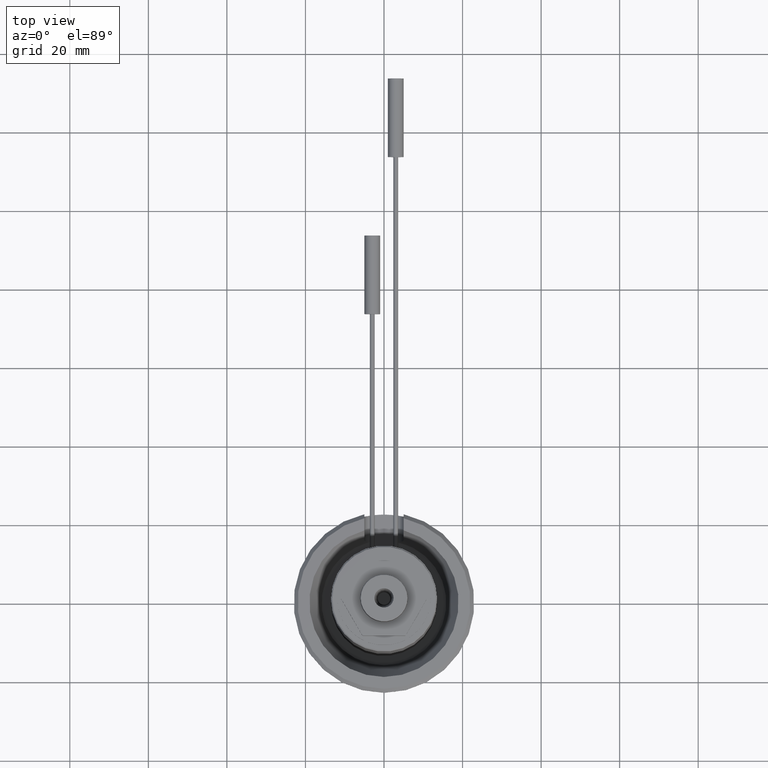
[diagram: clean part render]
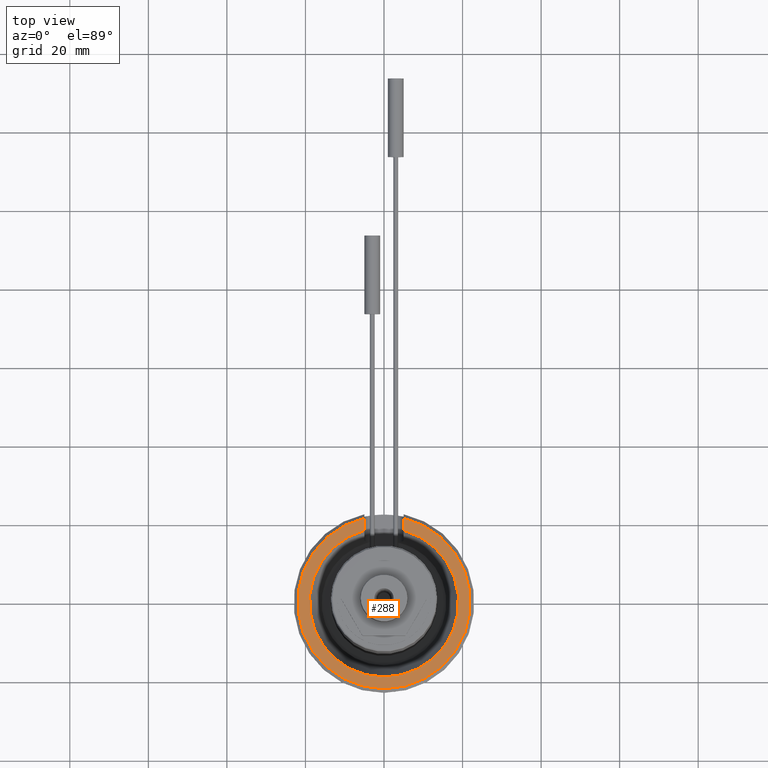
[diagram: same view with one face highlighted and labeled with its STEP entity id]
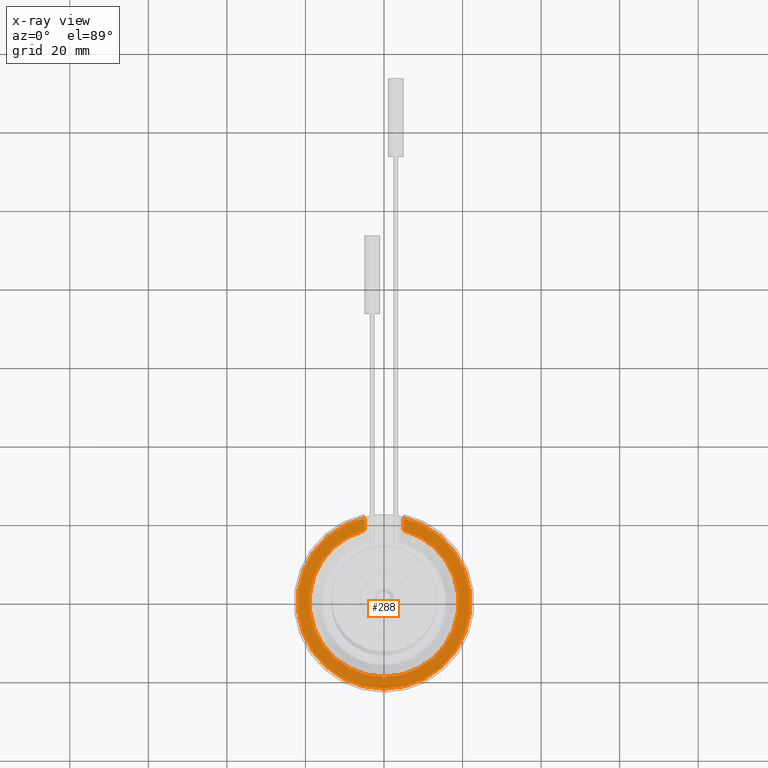
[diagram: x-ray of the same camera — body ghosted, the highlighted face saturated]
A machine part, top view. The second image highlights one B-rep face of the part: STEP entity #288.
The next image is the same camera in x-ray: the body ghosted, the highlighted face saturated — about 0% of this face is hidden behind the body in this view.
In plain terms, the highlighted planar face has unit normal (0, 0, -1).
Its self-contained STEP definition (entity closure, byte-faithful):
#85=LINE('',#1640,#129);
#86=LINE('',#1644,#130);
#129=VECTOR('',#1254,1.);
#130=VECTOR('',#1257,1.);
#200=PLANE('',#1050);
#241=FACE_OUTER_BOUND('',#432,.T.);
#288=ADVANCED_FACE('',(#241),#200,.F.);
#432=EDGE_LOOP('',(#580,#581,#582,#583));
#580=ORIENTED_EDGE('',*,*,#889,.T.);
#581=ORIENTED_EDGE('',*,*,#890,.T.);
#582=ORIENTED_EDGE('',*,*,#891,.F.);
#583=ORIENTED_EDGE('',*,*,#886,.F.);
#789=VERTEX_POINT('',#1621);
#790=VERTEX_POINT('',#1623);
#792=VERTEX_POINT('',#1641);
#793=VERTEX_POINT('',#1643);
#886=EDGE_CURVE('',#789,#790,#970,.T.);
#889=EDGE_CURVE('',#789,#792,#85,.T.);
#890=EDGE_CURVE('',#792,#793,#971,.T.);
#891=EDGE_CURVE('',#790,#793,#86,.T.);
#970=CIRCLE('',#1047,18.9996646888082);
#971=CIRCLE('',#1049,22.);
#1047=AXIS2_PLACEMENT_3D('',#1622,#1250,#1251);
#1049=AXIS2_PLACEMENT_3D('',#1642,#1255,#1256);
#1050=AXIS2_PLACEMENT_3D('',#1645,#1258,#1259);
#1250=DIRECTION('',(0.,0.,1.));
#1251=DIRECTION('',(1.,0.,0.));
#1254=DIRECTION('',(0.,1.,0.));
#1255=DIRECTION('',(0.,0.,1.));
#1256=DIRECTION('',(-1.,0.,0.));
#1257=DIRECTION('',(0.,1.,0.));
#1258=DIRECTION('',(0.,0.,-1.));
#1259=DIRECTION('',(-1.,0.,0.));
#1621=CARTESIAN_POINT('',(-4.99999999999501,18.3299552178175,25.));
#1622=CARTESIAN_POINT('',(0.,0.,25.));
#1623=CARTESIAN_POINT('',(4.999999999995,18.3299552178175,25.));
#1640=CARTESIAN_POINT('',(-4.99999999999501,13.5,25.));
#1641=CARTESIAN_POINT('',(-4.99999999999501,21.4242852856297,25.));
#1642=CARTESIAN_POINT('',(0.,0.,25.));
#1643=CARTESIAN_POINT('',(4.999999999995,21.4242852856297,25.));
#1644=CARTESIAN_POINT('',(4.999999999995,13.5,25.));
#1645=CARTESIAN_POINT('',(-23.,0.,25.));